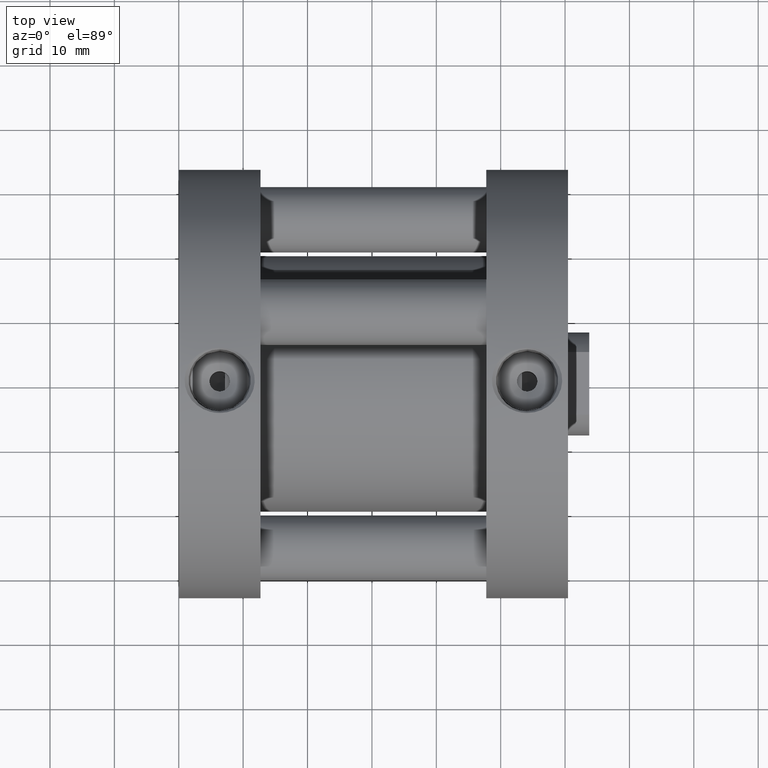
[diagram: clean part render]
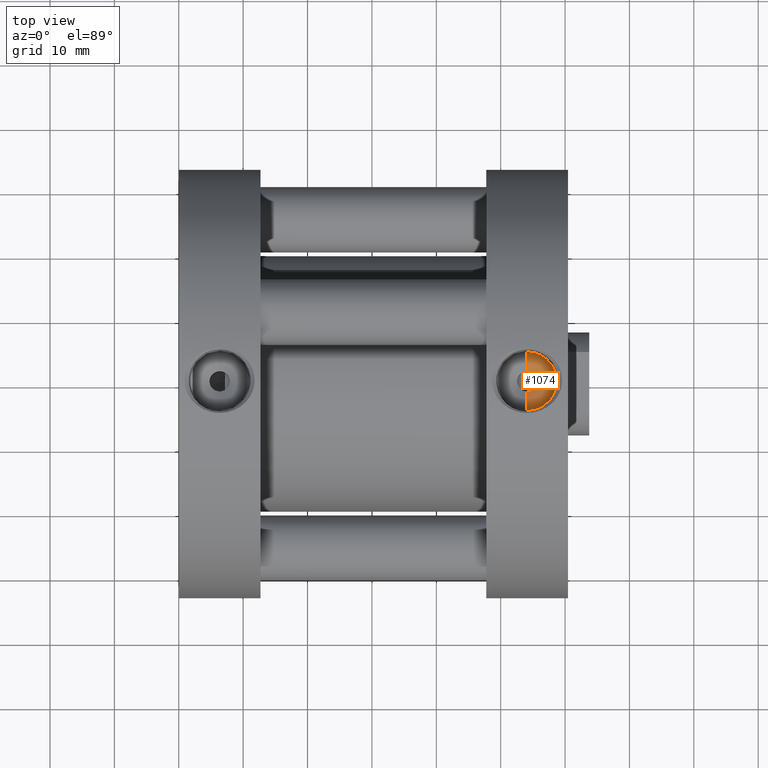
[diagram: same view with one face highlighted and labeled with its STEP entity id]
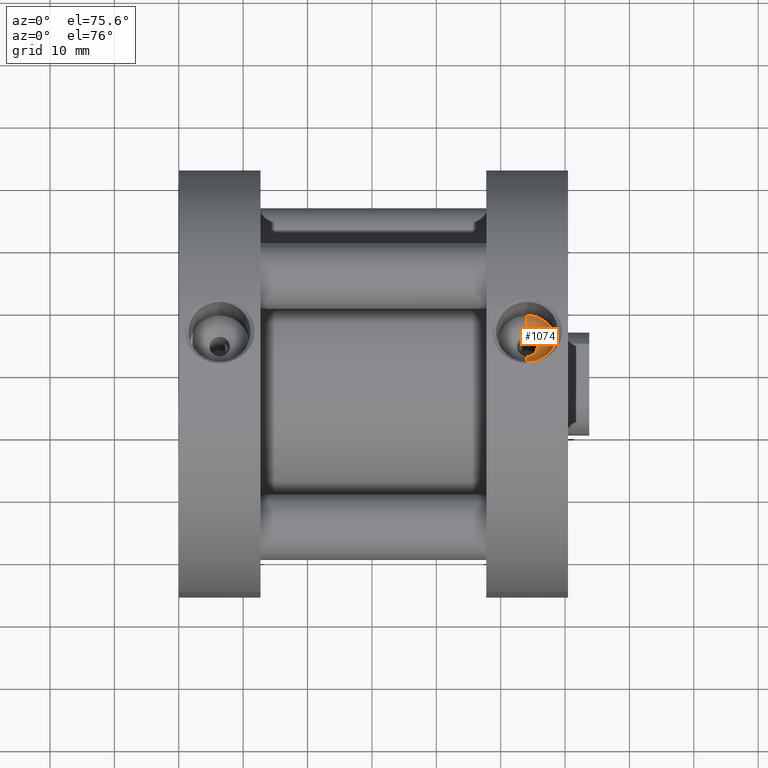
[diagram: same view with one face highlighted and labeled with its STEP entity id]
A machine part, top view. The second image highlights one B-rep face of the part: STEP entity #1074.
A second angle (auxiliary view) of the same face is appended — the face is thin or edge-on in the first view.
In plain terms, the highlighted conical surface has half-angle 60 deg.
Its self-contained STEP definition (entity closure, byte-faithful):
#24 = VERTEX_POINT ( 'NONE', #405 ) ;
#89 = CARTESIAN_POINT ( 'NONE',  ( -0.9869999999999999900, 0.2500000000000000000, 0.1804466362065748900 ) ) ;
#176 = DIRECTION ( 'NONE',  ( -0.4999999999999998300, 1.060575238724906700E-016, -0.8660254037844386000 ) ) ;
#276 = DIRECTION ( 'NONE',  ( -1.000000000000000000, 0.0000000000000000000, 0.0000000000000000000 ) ) ;
#396 = DIRECTION ( 'NONE',  ( -1.000000000000000000, 0.0000000000000000000, 0.0000000000000000000 ) ) ;
#397 = AXIS2_PLACEMENT_3D ( 'NONE', #2519, #396, #2875 ) ;
#405 = CARTESIAN_POINT ( 'NONE',  ( -0.9869999999999999900, 0.2500000000000000600, -0.1804466362065748900 ) ) ;
#550 = ORIENTED_EDGE ( 'NONE', *, *, #1949, .T. ) ;
#725 = VERTEX_POINT ( 'NONE', #89 ) ;
#815 = LINE ( 'NONE', #1704, #2470 ) ;
#1074 = ADVANCED_FACE ( 'CONE_3', ( #4340 ), #1404, .F. ) ;
#1255 = CIRCLE ( 'NONE', #397, 0.06250000000000807700 ) ;
#1404 = CONICAL_SURFACE ( 'NONE', #3821, 0.06250000000000807700, 1.047197551196597900 ) ;
#1529 = DIRECTION ( 'NONE',  ( -1.000000000000000000, 0.0000000000000000000, 0.0000000000000000000 ) ) ;
#1575 = LINE ( 'NONE', #1928, #1681 ) ;
#1669 = VERTEX_POINT ( 'NONE', #4435 ) ;
#1681 = VECTOR ( 'NONE', #176, 39.37007874015748900 ) ;
#1704 = CARTESIAN_POINT ( 'NONE',  ( -0.9189034778361278000, 0.2500000000000000000, 0.06250000000000807700 ) ) ;
#1763 = AXIS2_PLACEMENT_3D ( 'NONE', #3671, #1529, #4015 ) ;
#1878 = VERTEX_POINT ( 'NONE', #4059 ) ;
#1928 = CARTESIAN_POINT ( 'NONE',  ( -0.9189034778361278000, 0.2500000000000000000, -0.06250000000000807700 ) ) ;
#1949 = EDGE_CURVE ( 'NONE', #725, #24, #3852, .T. ) ;
#2133 = ORIENTED_EDGE ( 'NONE', *, *, #4288, .T. ) ;
#2323 = ORIENTED_EDGE ( 'NONE', *, *, #2382, .F. ) ;
#2382 = EDGE_CURVE ( 'NONE', #1669, #1878, #1255, .T. ) ;
#2470 = VECTOR ( 'NONE', #4196, 39.37007874015748900 ) ;
#2519 = CARTESIAN_POINT ( 'NONE',  ( -0.9189034778361278000, 0.2500000000000000000, 0.0000000000000000000 ) ) ;
#2875 = DIRECTION ( 'NONE',  ( 0.0000000000000000000, 0.0000000000000000000, 1.000000000000000000 ) ) ;
#2928 = EDGE_CURVE ( 'NONE', #1878, #24, #1575, .T. ) ;
#3471 = DIRECTION ( 'NONE',  ( 0.0000000000000000000, 0.0000000000000000000, 1.000000000000000000 ) ) ;
#3671 = CARTESIAN_POINT ( 'NONE',  ( -0.9869999999999999900, 0.2500000000000000000, 0.0000000000000000000 ) ) ;
#3807 = ORIENTED_EDGE ( 'NONE', *, *, #2928, .F. ) ;
#3821 = AXIS2_PLACEMENT_3D ( 'NONE', #4508, #276, #3471 ) ;
#3852 = CIRCLE ( 'NONE', #1763, 0.1804466362065748900 ) ;
#4015 = DIRECTION ( 'NONE',  ( 0.0000000000000000000, 0.0000000000000000000, 1.000000000000000000 ) ) ;
#4059 = CARTESIAN_POINT ( 'NONE',  ( -0.9189034778361278000, 0.2500000000000000000, -0.06250000000000807700 ) ) ;
#4196 = DIRECTION ( 'NONE',  ( -0.4999999999999998300, 0.0000000000000000000, 0.8660254037844386000 ) ) ;
#4288 = EDGE_CURVE ( 'NONE', #1669, #725, #815, .T. ) ;
#4340 = FACE_OUTER_BOUND ( 'NONE', #4448, .T. ) ;
#4435 = CARTESIAN_POINT ( 'NONE',  ( -0.9189034778361278000, 0.2500000000000000000, 0.06250000000000807700 ) ) ;
#4448 = EDGE_LOOP ( 'NONE', ( #3807, #2323, #2133, #550 ) ) ;
#4508 = CARTESIAN_POINT ( 'NONE',  ( -0.9189034778361278000, 0.2500000000000000000, 0.0000000000000000000 ) ) ;